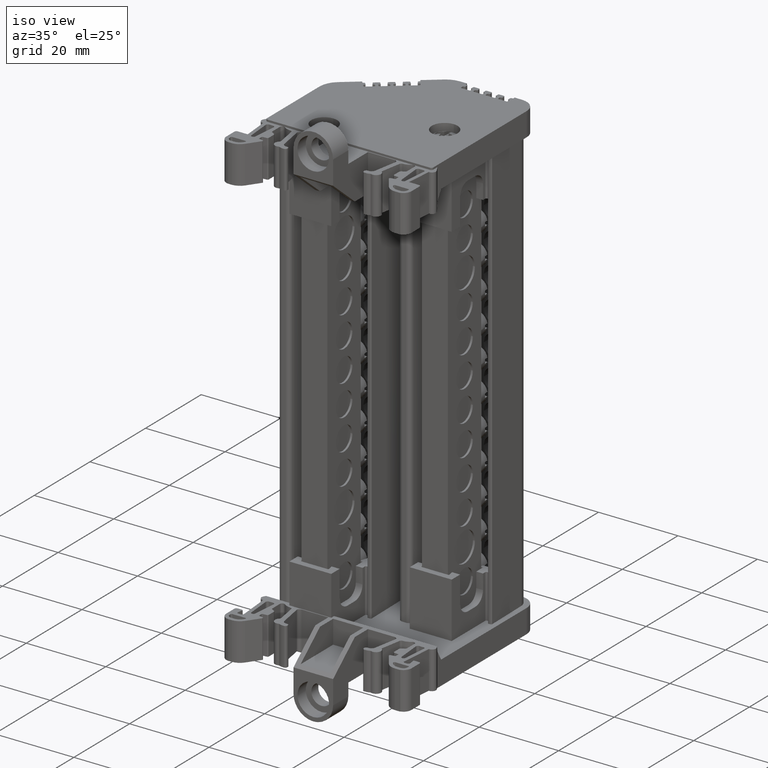
[diagram: clean part render]
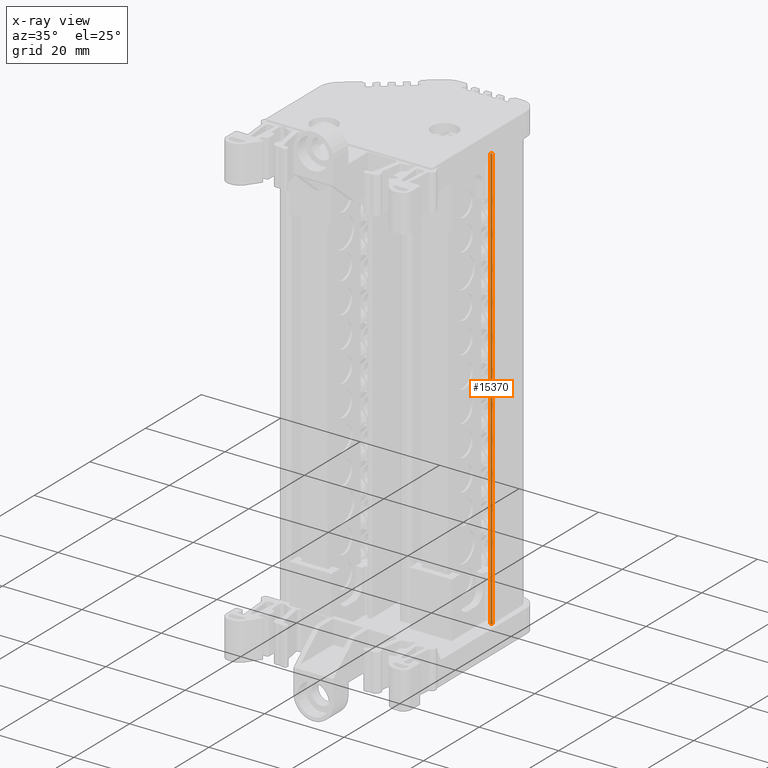
[diagram: x-ray — body ghosted, one internal face saturated and labeled with its STEP entity id]
A machine part, iso view, then the same camera in x-ray: the body is ghosted and one INTERNAL B-rep face — a face not visible from any outside direction — is saturated and labeled: STEP entity #15370.
In plain terms, the highlighted cylindrical surface (edge-blend (fillet) strip) has radius 0.2999 mm, axis along (-0, -0, -1).
Its self-contained STEP definition (entity closure, byte-faithful):
#9730 = EDGE_CURVE ( 'NONE', #21061, #21258, #34986, .T. ) ;
#9764 = EDGE_CURVE ( 'NONE', #21258, #21223, #24633, .T. ) ;
#13169 = EDGE_CURVE ( 'NONE', #21083, #21061, #39898, .T. ) ;
#13431 = EDGE_CURVE ( 'NONE', #21083, #21223, #48977, .T. ) ;
#15370 = ADVANCED_FACE ( 'NONE', ( #51329 ), #51327, .T. ) ;
#21061 = VERTEX_POINT ( 'NONE', #64358 ) ;
#21083 = VERTEX_POINT ( 'NONE', #64412 ) ;
#21223 = VERTEX_POINT ( 'NONE', #64540 ) ;
#21258 = VERTEX_POINT ( 'NONE', #61493 ) ;
#23440 = CARTESIAN_POINT ( 'NONE',  ( -27.47165259861772300, 34.97106622147221300, -36.09779384098945300 ) ) ;
#23445 = DIRECTION ( 'NONE',  ( 2.686070184306041300E-013, 1.604972357196095300E-014, 1.000000000000000000 ) ) ;
#23448 = DIRECTION ( 'NONE',  ( -1.000000000000000000, 0.0000000000000000000, 2.776609307536609700E-013 ) ) ;
#24606 = DIRECTION ( 'NONE',  ( 2.688052679989871900E-013, 4.692013405963708400E-015, 1.000000000000000000 ) ) ;
#24631 = CARTESIAN_POINT ( 'NONE',  ( -27.17181190912981100, 34.97629996017610700, -36.82605170661215500 ) ) ;
#24633 = LINE ( 'NONE', #24631, #35099 ) ;
#34986 = CIRCLE ( 'NONE', #34999, 0.2998863636337820200 ) ;
#34999 = AXIS2_PLACEMENT_3D ( 'NONE', #23440, #23445, #23448 ) ;
#35099 = VECTOR ( 'NONE', #24606, 1000.000000000000000 ) ;
#39898 = LINE ( 'NONE', #39931, #48889 ) ;
#39922 = DIRECTION ( 'NONE',  ( -2.686070184306041300E-013, -1.604972357196095300E-014, -1.000000000000000000 ) ) ;
#39931 = CARTESIAN_POINT ( 'NONE',  ( -27.47165259861765900, 34.67117985783841800, -36.82605170661206300 ) ) ;
#40869 = CARTESIAN_POINT ( 'NONE',  ( -27.47165259858896400, 34.97106622147392600, 70.97218928989246900 ) ) ;
#40892 = DIRECTION ( 'NONE',  ( 1.000000000000000000, 0.0000000000000000000, 0.0000000000000000000 ) ) ;
#40897 = DIRECTION ( 'NONE',  ( 1.387778780767670500E-017, 9.690813043904511800E-032, 1.000000000000000000 ) ) ;
#47614 = AXIS2_PLACEMENT_3D ( 'NONE', #51335, #51349, #51300 ) ;
#48889 = VECTOR ( 'NONE', #39922, 1000.000000000000000 ) ;
#48977 = CIRCLE ( 'NONE', #49012, 0.2998863636337820200 ) ;
#49012 = AXIS2_PLACEMENT_3D ( 'NONE', #40869, #40897, #40892 ) ;
#51300 = DIRECTION ( 'NONE',  ( -1.000000000000000000, 0.0000000000000000000, 2.776609307536609700E-013 ) ) ;
#51327 = CYLINDRICAL_SURFACE ( 'NONE', #47614, 0.2998863636337820200 ) ;
#51329 = FACE_OUTER_BOUND ( 'NONE', #61338, .T. ) ;
#51335 = CARTESIAN_POINT ( 'NONE',  ( -27.47165259861791900, 34.97106622147219900, -36.82605170661207000 ) ) ;
#51349 = DIRECTION ( 'NONE',  ( -2.686070184306041300E-013, -1.604972357196095300E-014, -1.000000000000000000 ) ) ;
#61338 = EDGE_LOOP ( 'NONE', ( #72233, #72241, #72184, #72193 ) ) ;
#61493 = CARTESIAN_POINT ( 'NONE',  ( -27.17181190912963400, 34.97629996017610700, -36.09779384098946800 ) ) ;
#64358 = CARTESIAN_POINT ( 'NONE',  ( -27.47165259861335700, 34.67117985783844600, -36.09779384098944600 ) ) ;
#64412 = CARTESIAN_POINT ( 'NONE',  ( -27.47165259860102900, 34.67117985784014400, 70.97218928989246900 ) ) ;
#64540 = CARTESIAN_POINT ( 'NONE',  ( -27.17181190910082500, 34.97629996017610700, 70.97218928989246900 ) ) ;
#72184 = ORIENTED_EDGE ( 'NONE', *, *, #9730, .T. ) ;
#72193 = ORIENTED_EDGE ( 'NONE', *, *, #9764, .T. ) ;
#72233 = ORIENTED_EDGE ( 'NONE', *, *, #13431, .F. ) ;
#72241 = ORIENTED_EDGE ( 'NONE', *, *, #13169, .T. ) ;